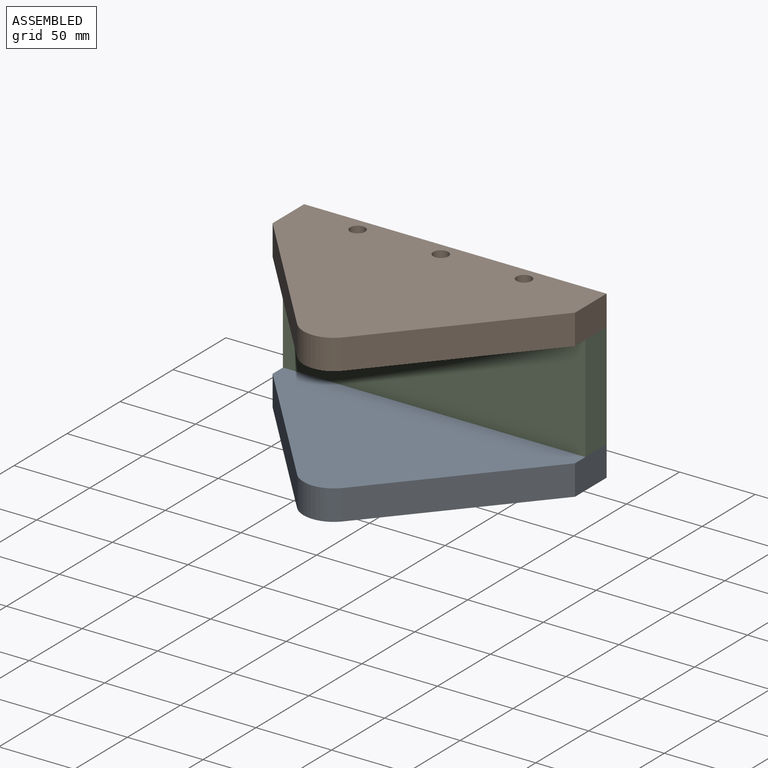
[diagram: assembled view]
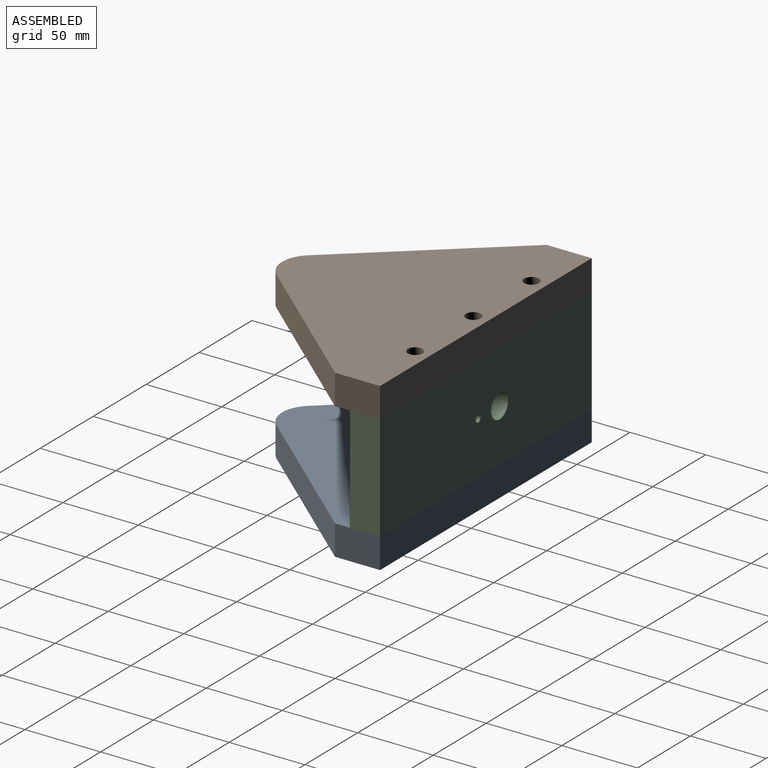
[diagram: assembled view, second angle]
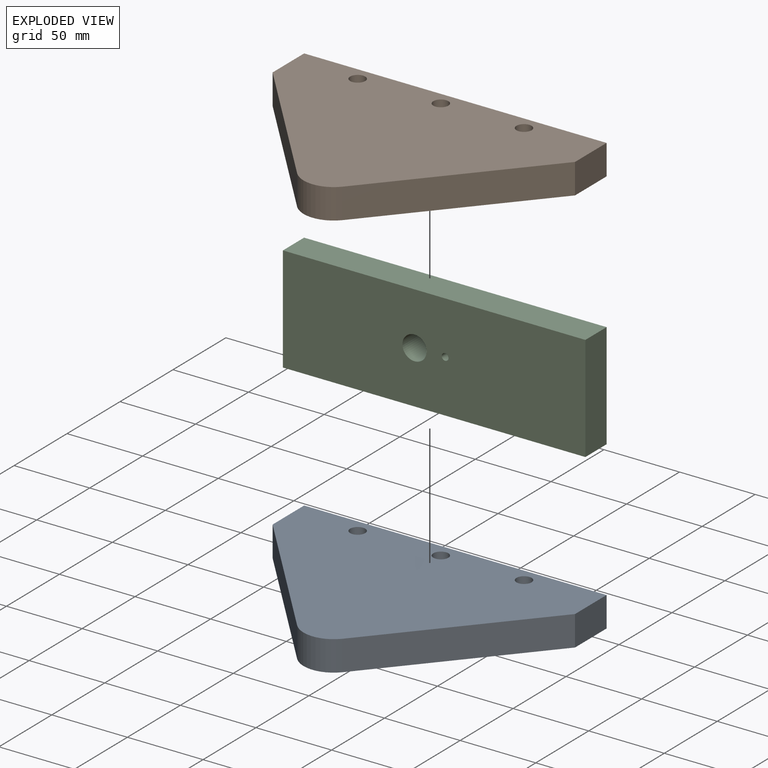
[diagram: exploded view]
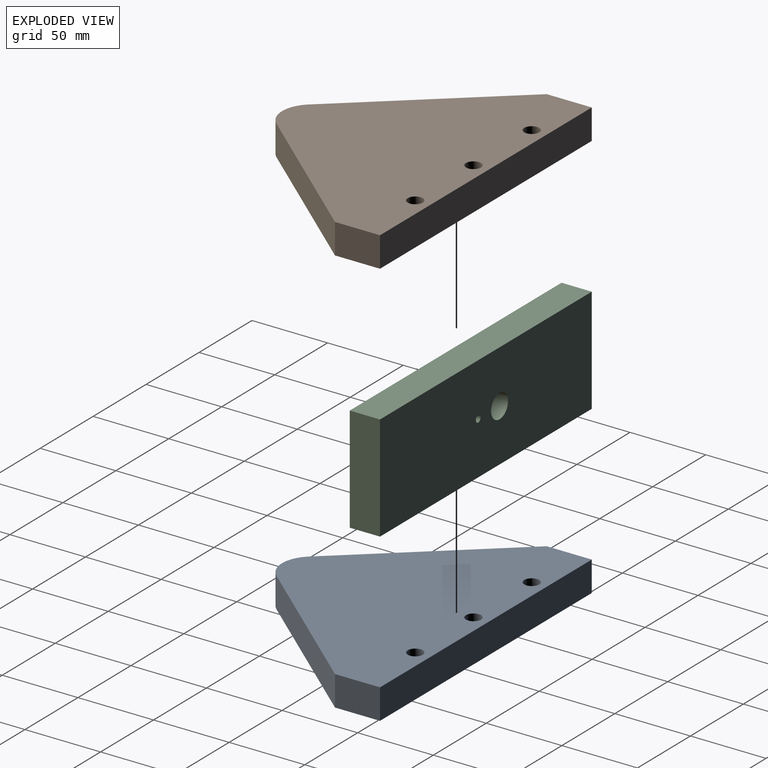
[diagram: exploded view, second angle]
ASSEMBLY  parts=3 mates=2
PART A: 11 faces, bbox 200x134.8x20 mm
  f0: plane 98.78x85.48mm, normal (-0.76,-0.65,0), area 2612.5mm2, adj f1,f8,f9,f10
  f1: cylinder r=20mm len=29.37mm, axis (0,0,-1), area 659.6mm2, adj f0,f2,f9,f10
  f2: plane 98.41x85.16mm, normal (0.76,-0.65,0), area 2602.8mm2, adj f1,f3,f9,f10
  f3: plane 29.77x20mm, normal (1,0,0), area 595.4mm2, adj f2,f4,f9,f10
  f4: plane 200x20mm, normal (0,1,0), area 4000mm2, adj f3,f8,f9,f10
  f5: cylinder r=5mm len=20mm, axis (0,0,-1), area 628.3mm2, adj f9,f10
  f6: cylinder r=5mm len=20mm, axis (0,0,-1), area 628.3mm2, adj f9,f10
  f7: cylinder r=5mm len=20mm, axis (0,0,-1), area 628.3mm2, adj f9,f10
  f8: plane 29.77x20mm, normal (-1,0,0), area 595.4mm2, adj f0,f4,f9,f10
  f9: plane 200x134.78mm, normal (0,0,1), area 17155.6mm2, adj f0,f1,f2,f3,f4,f5,f6,f7
  f10: plane 200x134.78mm, normal (0,0,-1), area 17155.6mm2, adj f0,f1,f2,f3,f4,f5,f6,f7
PART B: same geometry as A
PART C: 8 faces, bbox 200x20x70 mm
  f0: plane 70x20mm, normal (-1,0,0), area 1400mm2, adj f1,f4,f6,f7
  f1: plane 200x20mm, normal (0,0,-1), area 4000mm2, adj f0,f2,f6,f7
  f2: plane 70x20mm, normal (1,0,0), area 1400mm2, adj f1,f4,f6,f7
  f3: cylinder r=8mm len=20mm, axis (0,1,0), area 1005.3mm2, adj f6,f7
  f4: plane 200x20mm, normal (0,0,1), area 4000mm2, adj f0,f2,f6,f7
  f5: cylinder r=2.25mm len=20mm, axis (0,1,0), area 282.7mm2, adj f6,f7
  f6: plane 200x70mm, normal (0,-1,0), area 13783mm2, adj f0,f1,f2,f3,f4,f5
  f7: plane 200x70mm, normal (0,1,0), area 13783mm2, adj f0,f1,f2,f3,f4,f5
PLACE A t=(-115.02,-52.41,-101.86)mm
PLACE B t=(-115.02,-52.41,-11.86)mm
PLACE C t=(-106.49,56.07,-34.09)mm
MATE fastened C.f4 <-> B.f10  axis (0,0,1) through (-112.44,56.07,-11.86)mm
MATE fastened A.f9 <-> C.f1  axis (0,0,1) through (-112.44,56.07,-81.86)mm
